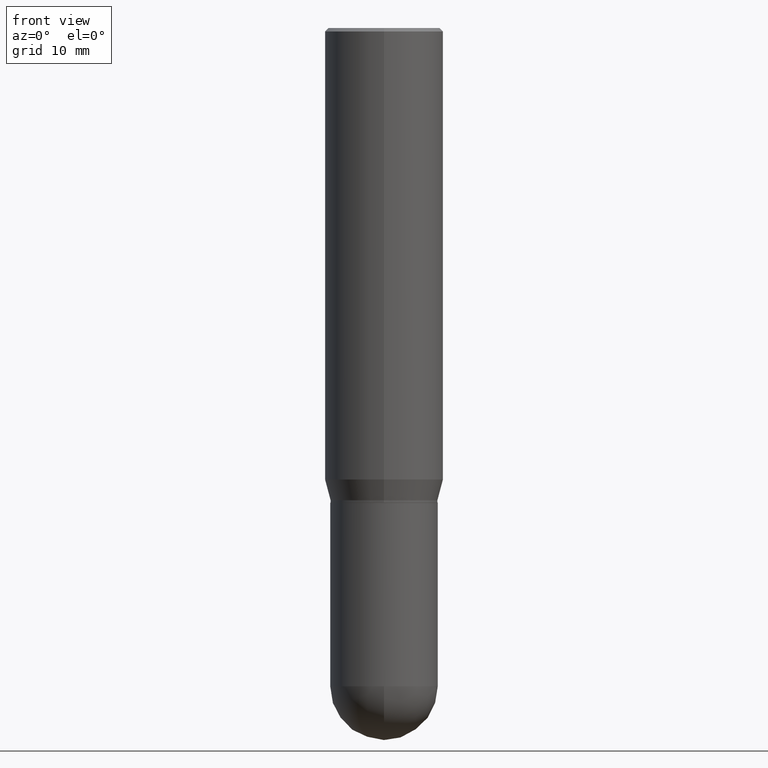
[diagram: clean part render]
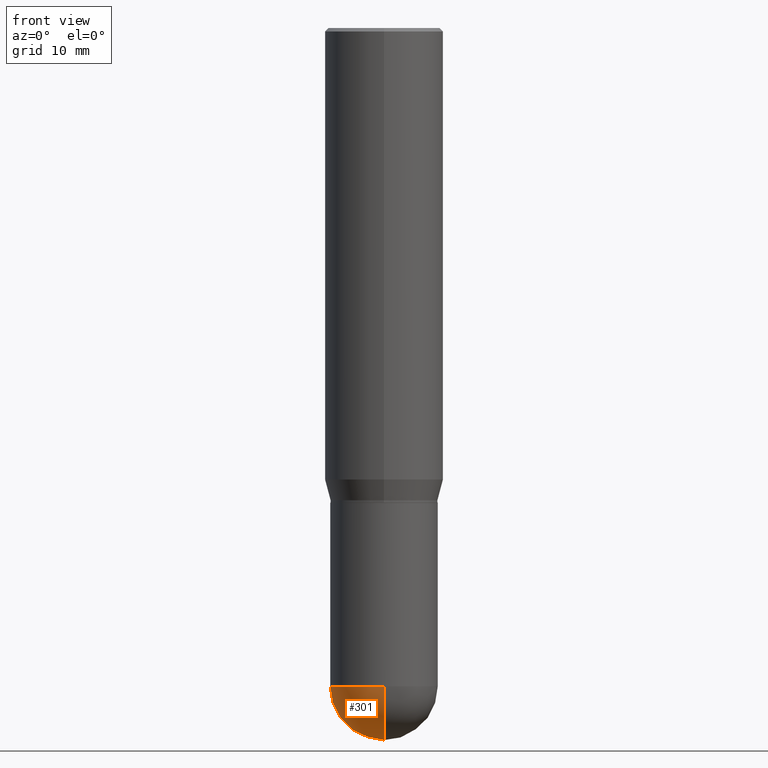
[diagram: same view with one face highlighted and labeled with its STEP entity id]
A machine part, front view. The second image highlights one B-rep face of the part: STEP entity #301.
In plain terms, the highlighted spherical surface has radius 5.7544 mm.
Its self-contained STEP definition (entity closure, byte-faithful):
#6 = DIRECTION ( 'NONE',  ( 6.982962677686265133E-15, 1.000000000000000000, 0.000000000000000000 ) ) ;
#10 = AXIS2_PLACEMENT_3D ( 'NONE', #109, #433, #75 ) ;
#21 = CIRCLE ( 'NONE', #220, 0.2265499999999999459 ) ;
#45 = DIRECTION ( 'NONE',  ( -1.000000000000000000, 7.105427357601001070E-15, -4.926315508542082329E-29 ) ) ;
#47 = DIRECTION ( 'NONE',  ( 1.000000000000000000, -6.982962677686265922E-15, 4.883557194083112340E-29 ) ) ;
#59 = EDGE_CURVE ( 'NONE', #505, #241, #246, .T. ) ;
#63 = ORIENTED_EDGE ( 'NONE', *, *, #115, .F. ) ;
#66 = CARTESIAN_POINT ( 'NONE',  ( -0.2265500000000000291, -6.723471230585900551E-15, -2.773450000000000415 ) ) ;
#70 = AXIS2_PLACEMENT_3D ( 'NONE', #455, #45, #459 ) ;
#75 = DIRECTION ( 'NONE',  ( 6.982962677686265922E-15, 1.000000000000000000, -2.411695425878847213E-15 ) ) ;
#82 = DIRECTION ( 'NONE',  ( -2.445468806185136597E-29, 3.491481338843145583E-15, 1.000000000000000000 ) ) ;
#91 = CARTESIAN_POINT ( 'NONE',  ( 6.784390825462294501E-29, -9.680577122470524352E-15, -2.773450000000000415 ) ) ;
#92 = CIRCLE ( 'NONE', #70, 0.2265499999999999459 ) ;
#109 = CARTESIAN_POINT ( 'NONE',  ( 6.784390825462294501E-29, -9.680577122470524352E-15, -2.773450000000000415 ) ) ;
#115 = EDGE_CURVE ( 'NONE', #241, #166, #375, .T. ) ;
#118 = CARTESIAN_POINT ( 'NONE',  ( 6.782385460514168389E-29, -9.683448919214523504E-15, -2.773450000000000415 ) ) ;
#124 = EDGE_CURVE ( 'NONE', #251, #166, #92, .T. ) ;
#159 = DIRECTION ( 'NONE',  ( 1.000000000000000000, -6.982962677686266711E-15, 0.000000000000000000 ) ) ;
#166 = VERTEX_POINT ( 'NONE', #334 ) ;
#219 = ORIENTED_EDGE ( 'NONE', *, *, #59, .F. ) ;
#220 = AXIS2_PLACEMENT_3D ( 'NONE', #91, #47, #6 ) ;
#241 = VERTEX_POINT ( 'NONE', #66 ) ;
#246 = CIRCLE ( 'NONE', #287, 0.2265500000000000291 ) ;
#251 = VERTEX_POINT ( 'NONE', #431 ) ;
#260 = ORIENTED_EDGE ( 'NONE', *, *, #124, .T. ) ;
#263 = SPHERICAL_SURFACE ( 'NONE', #10, 0.2265499999999999459 ) ;
#287 = AXIS2_PLACEMENT_3D ( 'NONE', #118, #395, #159 ) ;
#301 = ADVANCED_FACE ( 'NONE', ( #394 ), #263, .T. ) ;
#310 = AXIS2_PLACEMENT_3D ( 'NONE', #372, #82, #327 ) ;
#318 = ORIENTED_EDGE ( 'NONE', *, *, #322, .F. ) ;
#322 = EDGE_CURVE ( 'NONE', #251, #505, #21, .T. ) ;
#327 = DIRECTION ( 'NONE',  ( 1.000000000000000000, -6.982962677686266711E-15, 0.000000000000000000 ) ) ;
#334 = CARTESIAN_POINT ( 'NONE',  ( -1.609734567864438547E-15, -0.2265500000000096603, -2.773449999999999971 ) ) ;
#372 = CARTESIAN_POINT ( 'NONE',  ( 6.782385460514168389E-29, -9.683448919214523504E-15, -2.773450000000000415 ) ) ;
#374 = EDGE_LOOP ( 'NONE', ( #318, #260, #63, #219 ) ) ;
#375 = CIRCLE ( 'NONE', #310, 0.2265500000000000291 ) ;
#394 = FACE_OUTER_BOUND ( 'NONE', #374, .T. ) ;
#395 = DIRECTION ( 'NONE',  ( -2.445468806185136597E-29, 3.491481338843145583E-15, 1.000000000000000000 ) ) ;
#410 = CARTESIAN_POINT ( 'NONE',  ( 1.581990194629891371E-15, 0.2265499999999903147, -2.773450000000000859 ) ) ;
#431 = CARTESIAN_POINT ( 'NONE',  ( 7.348098679644216605E-29, -1.045770003316809804E-14, -3.000000000000000444 ) ) ;
#433 = DIRECTION ( 'NONE',  ( -1.000000000000000000, 6.982962677686265922E-15, -4.883557194083112901E-29 ) ) ;
#455 = CARTESIAN_POINT ( 'NONE',  ( 6.784390825462294501E-29, -9.680577122470524352E-15, -2.773450000000000415 ) ) ;
#459 = DIRECTION ( 'NONE',  ( -7.105427357601000281E-15, -1.000000000000000000, 0.000000000000000000 ) ) ;
#505 = VERTEX_POINT ( 'NONE', #410 ) ;